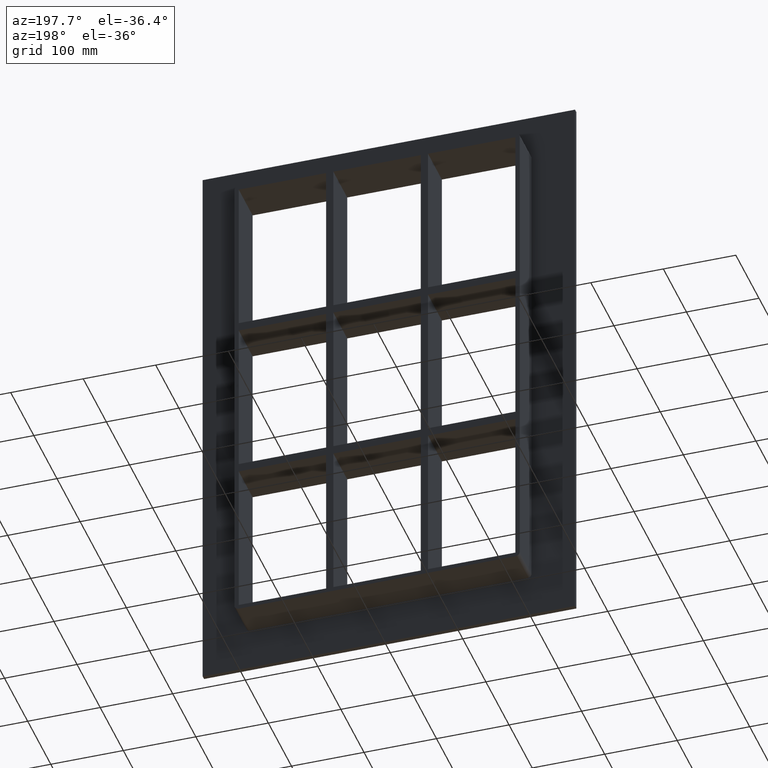
[diagram: clean part render]
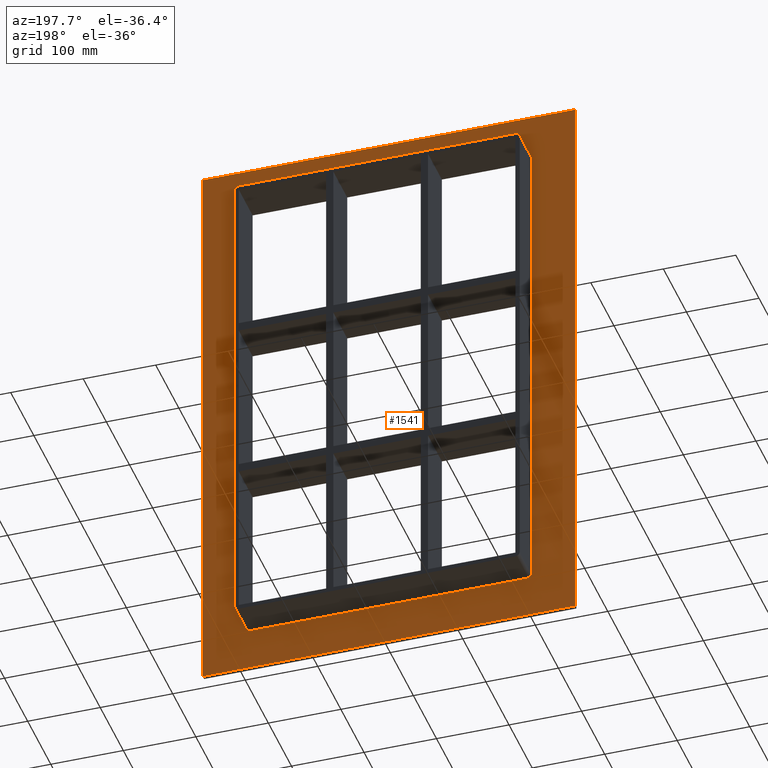
[diagram: same view with one face highlighted and labeled with its STEP entity id]
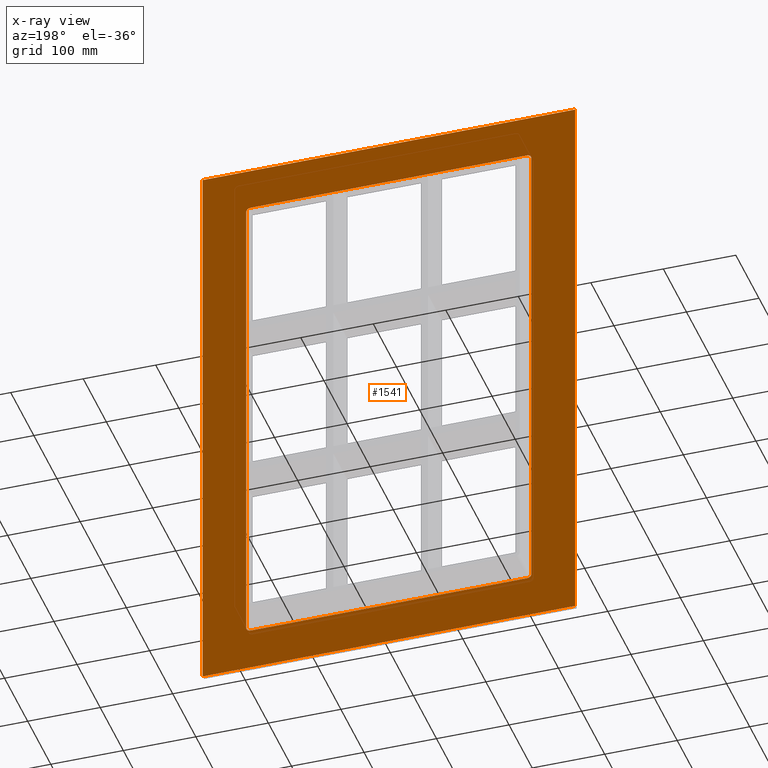
[diagram: x-ray of the same camera — body ghosted, the highlighted face saturated]
A machine part, auxiliary view. The second image highlights one B-rep face of the part: STEP entity #1541.
The next image is the same camera in x-ray: the body ghosted, the highlighted face saturated — about 0% of this face is hidden behind the body in this view.
In plain terms, the highlighted planar face has unit normal (0, 1, 0).
Its self-contained STEP definition (entity closure, byte-faithful):
#1432=CARTESIAN_POINT('',(0.0,6.000000000000001,-3.865438E-014));
#1433=DIRECTION('',(0.0,1.0,0.0));
#1434=DIRECTION('',(0.0,0.0,1.0));
#1435=AXIS2_PLACEMENT_3D('',#1432,#1433,#1434);
#1436=PLANE('',#1435);
#1437=CARTESIAN_POINT('',(-256.75000000000006,6.000000000000001,405.00000000000006));
#1438=VERTEX_POINT('',#1437);
#1439=CARTESIAN_POINT('',(256.75000000000006,6.000000000000001,405.00000000000006));
#1440=VERTEX_POINT('',#1439);
#1441=CARTESIAN_POINT('',(-256.75000000000006,6.000000000000001,405.00000000000006));
#1442=DIRECTION('',(1.0,0.0,0.0));
#1443=VECTOR('',#1442,513.50000000000011);
#1444=LINE('',#1441,#1443);
#1445=EDGE_CURVE('',#1438,#1440,#1444,.T.);
#1446=ORIENTED_EDGE('',*,*,#1445,.T.);
#1447=CARTESIAN_POINT('',(256.75000000000006,6.000000000000001,-405.00000000000023));
#1448=VERTEX_POINT('',#1447);
#1449=CARTESIAN_POINT('',(256.75000000000006,6.000000000000001,405.00000000000006));
#1450=DIRECTION('',(0.0,0.0,-1.0));
#1451=VECTOR('',#1450,810.00000000000023);
#1452=LINE('',#1449,#1451);
#1453=EDGE_CURVE('',#1440,#1448,#1452,.T.);
#1454=ORIENTED_EDGE('',*,*,#1453,.T.);
#1455=CARTESIAN_POINT('',(-256.75000000000006,6.000000000000001,-405.00000000000023));
#1456=VERTEX_POINT('',#1455);
#1457=CARTESIAN_POINT('',(256.75000000000006,6.000000000000001,-405.00000000000011));
#1458=DIRECTION('',(-1.0,0.0,0.0));
#1459=VECTOR('',#1458,513.50000000000011);
#1460=LINE('',#1457,#1459);
#1461=EDGE_CURVE('',#1448,#1456,#1460,.T.);
#1462=ORIENTED_EDGE('',*,*,#1461,.T.);
#1463=CARTESIAN_POINT('',(-256.75000000000006,6.000000000000001,-405.00000000000011));
#1464=DIRECTION('',(0.0,0.0,1.0));
#1465=VECTOR('',#1464,810.00000000000023);
#1466=LINE('',#1463,#1465);
#1467=EDGE_CURVE('',#1456,#1438,#1466,.T.);
#1468=ORIENTED_EDGE('',*,*,#1467,.T.);
#1469=EDGE_LOOP('',(#1446,#1454,#1462,#1468));
#1470=FACE_OUTER_BOUND('',#1469,.T.);
#1471=CARTESIAN_POINT('',(-190.75000000000003,6.000000000000001,-345.0));
#1472=VERTEX_POINT('',#1471);
#1473=CARTESIAN_POINT('',(-196.75000000000006,6.000000000000001,-339.00000000000006));
#1474=VERTEX_POINT('',#1473);
#1475=CARTESIAN_POINT('',(-190.75000000000003,6.000000000000001,-339.00000000000006));
#1476=DIRECTION('',(0.0,1.0,0.0));
#1477=DIRECTION('',(-0.707106781186552,0.0,-0.707106781186543));
#1478=AXIS2_PLACEMENT_3D('',#1475,#1476,#1477);
#1479=CIRCLE('',#1478,6.000000000000001);
#1480=EDGE_CURVE('',#1472,#1474,#1479,.T.);
#1481=ORIENTED_EDGE('',*,*,#1480,.F.);
#1482=CARTESIAN_POINT('',(190.75000000000003,6.000000000000001,-345.0));
#1483=VERTEX_POINT('',#1482);
#1484=CARTESIAN_POINT('',(190.75000000000003,6.000000000000001,-345.0));
#1485=DIRECTION('',(-1.0,0.0,0.0));
#1486=VECTOR('',#1485,381.50000000000006);
#1487=LINE('',#1484,#1486);
#1488=EDGE_CURVE('',#1483,#1472,#1487,.T.);
#1489=ORIENTED_EDGE('',*,*,#1488,.F.);
#1490=CARTESIAN_POINT('',(196.75000000000006,6.000000000000001,-338.99999999999989));
#1491=VERTEX_POINT('',#1490);
#1492=CARTESIAN_POINT('',(190.75000000000003,6.000000000000001,-338.99999999999989));
#1493=DIRECTION('',(0.0,1.0,0.0));
#1494=DIRECTION('',(0.707106781186543,0.0,-0.707106781186552));
#1495=AXIS2_PLACEMENT_3D('',#1492,#1493,#1494);
#1496=CIRCLE('',#1495,6.0);
#1497=EDGE_CURVE('',#1491,#1483,#1496,.T.);
#1498=ORIENTED_EDGE('',*,*,#1497,.F.);
#1499=CARTESIAN_POINT('',(196.75000000000006,6.000000000000001,339.00000000000011));
#1500=VERTEX_POINT('',#1499);
#1501=CARTESIAN_POINT('',(196.75000000000006,6.000000000000001,339.00000000000011));
#1502=DIRECTION('',(0.0,0.0,-1.0));
#1503=VECTOR('',#1502,678.0);
#1504=LINE('',#1501,#1503);
#1505=EDGE_CURVE('',#1500,#1491,#1504,.T.);
#1506=ORIENTED_EDGE('',*,*,#1505,.F.);
#1507=CARTESIAN_POINT('',(190.75000000000003,6.000000000000001,345.00000000000011));
#1508=VERTEX_POINT('',#1507);
#1509=CARTESIAN_POINT('',(190.75000000000003,6.000000000000001,339.00000000000011));
#1510=DIRECTION('',(0.0,1.0,0.0));
#1511=DIRECTION('',(0.707106781186543,0.0,0.707106781186552));
#1512=AXIS2_PLACEMENT_3D('',#1509,#1510,#1511);
#1513=CIRCLE('',#1512,6.0);
#1514=EDGE_CURVE('',#1508,#1500,#1513,.T.);
#1515=ORIENTED_EDGE('',*,*,#1514,.F.);
#1516=CARTESIAN_POINT('',(-190.75000000000003,6.000000000000001,345.00000000000011));
#1517=VERTEX_POINT('',#1516);
#1518=CARTESIAN_POINT('',(-190.75000000000003,6.000000000000001,345.00000000000011));
#1519=DIRECTION('',(1.0,0.0,0.0));
#1520=VECTOR('',#1519,381.50000000000006);
#1521=LINE('',#1518,#1520);
#1522=EDGE_CURVE('',#1517,#1508,#1521,.T.);
#1523=ORIENTED_EDGE('',*,*,#1522,.F.);
#1524=CARTESIAN_POINT('',(-196.75000000000006,6.000000000000001,339.00000000000006));
#1525=VERTEX_POINT('',#1524);
#1526=CARTESIAN_POINT('',(-190.75000000000003,6.000000000000001,339.00000000000006));
#1527=DIRECTION('',(0.0,1.0,0.0));
#1528=DIRECTION('',(-0.707106781186543,0.0,0.707106781186552));
#1529=AXIS2_PLACEMENT_3D('',#1526,#1527,#1528);
#1530=CIRCLE('',#1529,6.0);
#1531=EDGE_CURVE('',#1525,#1517,#1530,.T.);
#1532=ORIENTED_EDGE('',*,*,#1531,.F.);
#1533=CARTESIAN_POINT('',(-196.75000000000006,6.000000000000001,-339.00000000000006));
#1534=DIRECTION('',(0.0,0.0,1.0));
#1535=VECTOR('',#1534,678.0);
#1536=LINE('',#1533,#1535);
#1537=EDGE_CURVE('',#1474,#1525,#1536,.T.);
#1538=ORIENTED_EDGE('',*,*,#1537,.F.);
#1539=EDGE_LOOP('',(#1481,#1489,#1498,#1506,#1515,#1523,#1532,#1538));
#1540=FACE_BOUND('',#1539,.T.);
#1541=ADVANCED_FACE('',(#1470,#1540),#1436,.T.);